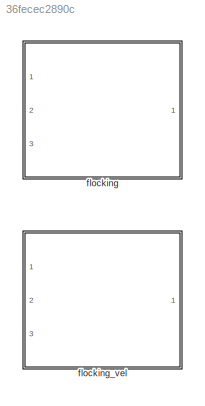
MODEL slx_36fecec2890c
KIND library
CONFIG AbsTol = auto
CONFIG EnableMultiTasking = off
CONFIG FixedStep = auto
CONFIG MaxStep = auto
CONFIG MinStep = auto
CONFIG RelTol = 1e-3
CONFIG SampleTimeConstraint = Unconstrained
CONFIG Solver = VariableStepAuto
CONFIG SolverName = VariableStepAuto
CONFIG StartTime = 0.0
CONFIG StopTime = 10.0
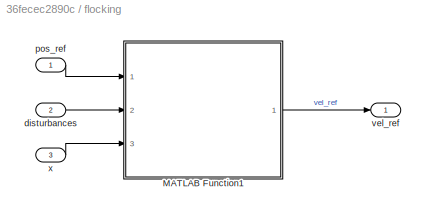
BLOCK [SubSystem] flocking
  Ports = [3, 1]
  RequestExecContextInheritance = off
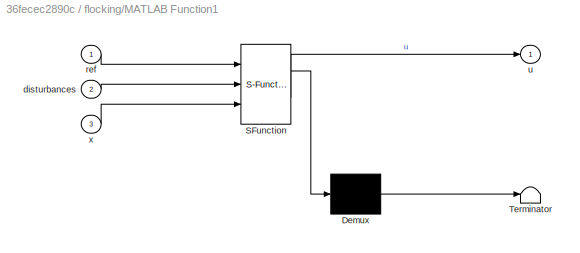
BLOCK [SubSystem] flocking/MATLAB Function1
  ErrorFcn = Stateflow.Translate.translate
  PermitHierarchicalResolution = ExplicitOnly
  Ports = [3, 1]
  RequestExecContextInheritance = off
  SFBlockType = MATLAB Function
  TreatAsAtomicUnit = on
BLOCK [Demux] flocking/MATLAB Function1/ Demux 
  Outputs = 1
  Ports = [1, 1]
BLOCK [S-Function] flocking/MATLAB Function1/ SFunction 
  EnableBusSupport = off
  FunctionName = sf_sfun
  Parameters = fc_params
  PortCounts = [3 2]
  Ports = [3, 2]
  SFcnIsStateOwnerBlock = off
  SFunctionDeploymentMode = off
  Tag = Stateflow S-Function flocking_lib 1
BLOCK [Terminator] flocking/MATLAB Function1/ Terminator 
BLOCK [Inport] flocking/MATLAB Function1/disturbances
  IconDisplay = Port number
  Port = 2
BLOCK [Inport] flocking/MATLAB Function1/ref
  IconDisplay = Port number
BLOCK [Outport] flocking/MATLAB Function1/u
  IconDisplay = Port number
BLOCK [Inport] flocking/MATLAB Function1/x
  IconDisplay = Port number
  Port = 3
BLOCK [Inport] flocking/disturbances
  IconDisplay = Port number
  Port = 2
BLOCK [Inport] flocking/pos_ref
  IconDisplay = Port number
BLOCK [Outport] flocking/vel_ref
  IconDisplay = Port number
BLOCK [Inport] flocking/x
  IconDisplay = Port number
  Port = 3
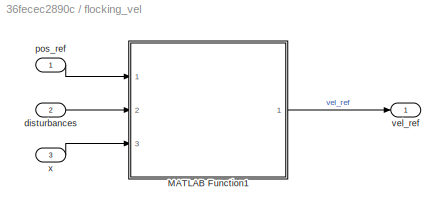
BLOCK [SubSystem] flocking_vel
  Ports = [3, 1]
  RequestExecContextInheritance = off
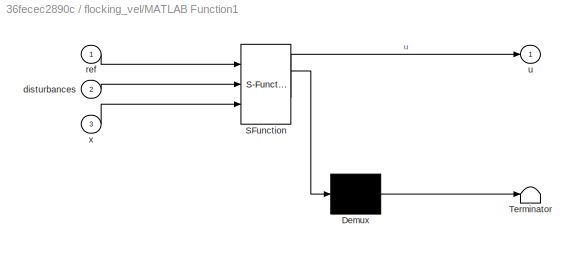
BLOCK [SubSystem] flocking_vel/MATLAB Function1
  ErrorFcn = Stateflow.Translate.translate
  PermitHierarchicalResolution = ExplicitOnly
  Ports = [3, 1]
  RequestExecContextInheritance = off
  SFBlockType = MATLAB Function
  TreatAsAtomicUnit = on
BLOCK [Demux] flocking_vel/MATLAB Function1/ Demux 
  Outputs = 1
  Ports = [1, 1]
BLOCK [S-Function] flocking_vel/MATLAB Function1/ SFunction 
  EnableBusSupport = off
  FunctionName = sf_sfun
  Parameters = fvc_params
  PortCounts = [3 2]
  Ports = [3, 2]
  SFcnIsStateOwnerBlock = off
  SFunctionDeploymentMode = off
  Tag = Stateflow S-Function flocking_lib 2
BLOCK [Terminator] flocking_vel/MATLAB Function1/ Terminator 
BLOCK [Inport] flocking_vel/MATLAB Function1/disturbances
  IconDisplay = Port number
  Port = 2
BLOCK [Inport] flocking_vel/MATLAB Function1/ref
  IconDisplay = Port number
BLOCK [Outport] flocking_vel/MATLAB Function1/u
  IconDisplay = Port number
BLOCK [Inport] flocking_vel/MATLAB Function1/x
  IconDisplay = Port number
  Port = 3
BLOCK [Inport] flocking_vel/disturbances
  IconDisplay = Port number
  Port = 2
BLOCK [Inport] flocking_vel/pos_ref
  IconDisplay = Port number
BLOCK [Outport] flocking_vel/vel_ref
  IconDisplay = Port number
BLOCK [Inport] flocking_vel/x
  IconDisplay = Port number
  Port = 3
LINE flocking/MATLAB Function1:1 -> flocking/vel_ref:1
LINE flocking/disturbances:1 -> flocking/MATLAB Function1:2
LINE flocking/pos_ref:1 -> flocking/MATLAB Function1:1
LINE flocking/x:1 -> flocking/MATLAB Function1:3
LINE flocking_vel/MATLAB Function1:1 -> flocking_vel/vel_ref:1
LINE flocking_vel/disturbances:1 -> flocking_vel/MATLAB Function1:2
LINE flocking_vel/pos_ref:1 -> flocking_vel/MATLAB Function1:1
LINE flocking_vel/x:1 -> flocking_vel/MATLAB Function1:3
CHART flocking/MATLAB Function1 states=1 transitions=1
  STATE_LABEL 'eML_blk_kernel()'
  STATE_LABEL 'SCRIPT:\nfunction u = flocking_controller(ref, disturbances, x, fc_params)\n% disturbance is 4-C matrix of [x;y;z;dist] for C disturbances\n    [~, N] = size(x);\n    [~, C] = size(disturbances);\n    out = zeros(3, N);\n    for n=1:N\n        e_r_ref = ref - x(1:3,n); % Position to reference\n        e_r_ref_magn = norm(e_r_ref);\n        e_r_ref_dir = e_r_ref/e_r_ref_magn;\n        %e_rdot_ref = ref - x(4...<+2763ch>'
CHART flocking_vel/MATLAB Function1 states=1 transitions=1
  STATE_LABEL 'eML_blk_kernel()'
  STATE_LABEL 'SCRIPT:\nfunction u = flocking_controller(ref, disturbances, x, fvc_params)\n% disturbance is 4-C matrix of [x;y;z;dist] for C disturbances\n    [~, N] = size(x);\n    [~, C] = size(disturbances);\n    out = zeros(3, N);\n    for n=1:N\n        e_r_ref = ref - x(1:3,n); % Position to reference\n        e_r_ref_magn = norm(e_r_ref);\n        e_r_ref_dir = e_r_ref/e_r_ref_magn;\n        %e_rdot_ref = ref - x(...<+2734ch>'
